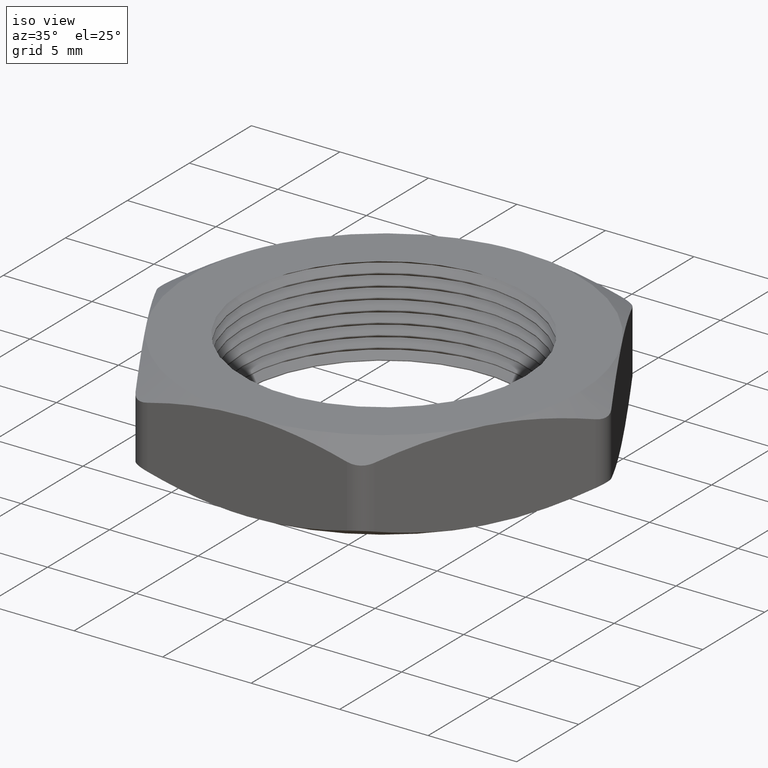
[diagram: clean part render]
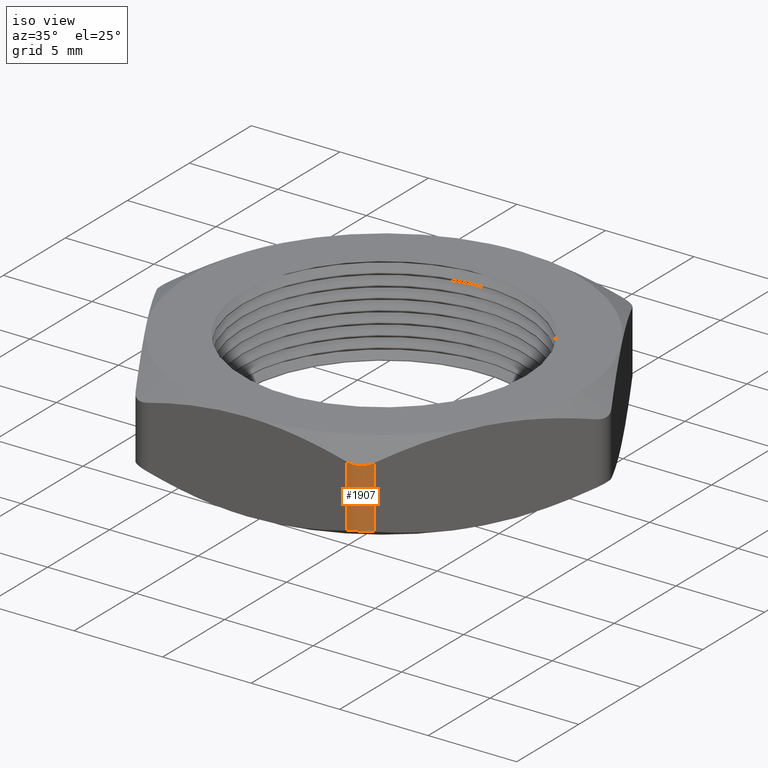
[diagram: same view with one face highlighted and labeled with its STEP entity id]
A machine part, iso view. The second image highlights one B-rep face of the part: STEP entity #1907.
In plain terms, the highlighted cylindrical surface (edge-blend (fillet) strip) has radius 1.27 mm, axis along (0, 0, -1).
Its self-contained STEP definition (entity closure, byte-faithful):
#151 = CARTESIAN_POINT ( 'NONE',  ( 0.2222798536380058400, -0.4349999999999998900, 0.1691111204119871100 ) ) ;
#152 = CARTESIAN_POINT ( 'NONE',  ( 0.2222798536380058700, -0.4349999999999998900, 0.03088887958801292400 ) ) ;
#261 = VECTOR ( 'NONE', #312, 39.37007874015748100 ) ;
#262 = CARTESIAN_POINT ( 'NONE',  ( 0.2222798536380058400, -0.4349999999999998900, 0.2000000000000000100 ) ) ;
#263 = LINE ( 'NONE', #262, #261 ) ;
#312 = DIRECTION ( 'NONE',  ( 0.0000000000000000000, 0.0000000000000000000, 1.000000000000000000 ) ) ;
#575 = CARTESIAN_POINT ( 'NONE',  ( 0.2222798536380058700, -0.4349999999999998900, 0.03088887958801292400 ) ) ;
#576 = CARTESIAN_POINT ( 'NONE',  ( 0.2265847453933643500, -0.4350000000000000500, 0.03201981071306514400 ) ) ;
#577 = CARTESIAN_POINT ( 'NONE',  ( 0.2309501607717563100, -0.4344345798341471800, 0.03290278782089103800 ) ) ;
#578 = CARTESIAN_POINT ( 'NONE',  ( 0.2393632267801773200, -0.4321922691895352900, 0.03408178200495541600 ) ) ;
#579 = CARTESIAN_POINT ( 'NONE',  ( 0.2435107721110095200, -0.4304817054886954100, 0.03438877041274994400 ) ) ;
#580 = CARTESIAN_POINT ( 'NONE',  ( 0.2511235597171597200, -0.4260777074942981900, 0.03438483636758259100 ) ) ;
#581 = CARTESIAN_POINT ( 'NONE',  ( 0.2546428228077295400, -0.4233644132453167600, 0.03407901691707528700 ) ) ;
#582 = CARTESIAN_POINT ( 'NONE',  ( 0.2608209857074537700, -0.4171523112068682400, 0.03288638332351911900 ) ) ;
#583 = CARTESIAN_POINT ( 'NONE',  ( 0.2634293512249394900, -0.4137269794734977400, 0.03201945696273095900 ) ) ;
#584 = CARTESIAN_POINT ( 'NONE',  ( 0.2655811238272408100, -0.4099999999999773300, 0.03088887958800596100 ) ) ;
#589 = B_SPLINE_CURVE_WITH_KNOTS ( 'NONE', 3,
 ( #584, #583, #582, #581, #580, #579, #578, #577, #576, #575 ),
 .UNSPECIFIED., .F., .F.,
 ( 4, 2, 2, 2, 4 ),
 ( 1.017737293320707600E-016, 0.0003345381006703017400, 0.0006690762013405017800, 0.001003614302010701700, 0.001338152402680901600 ),
 .UNSPECIFIED. ) ;
#694 = CARTESIAN_POINT ( 'NONE',  ( 0.2655811238272358100, -0.4099999999999859900, 0.1691111204119916100 ) ) ;
#695 = CARTESIAN_POINT ( 'NONE',  ( 0.2634286779495624300, -0.4137281456206626800, 0.1679801892869403300 ) ) ;
#696 = CARTESIAN_POINT ( 'NONE',  ( 0.2607563020329248800, -0.4172259961534995300, 0.1670972121791126100 ) ) ;
#697 = CARTESIAN_POINT ( 'NONE',  ( 0.2546078710473096400, -0.4233907697182015000, 0.1659182179950468300 ) ) ;
#698 = CARTESIAN_POINT ( 'NONE',  ( 0.2510527067621778900, -0.4261273674876298600, 0.1656112295872513300 ) ) ;
#699 = CARTESIAN_POINT ( 'NONE',  ( 0.2434323388177441800, -0.4305182359509754400, 0.1656151636324161600 ) ) ;
#700 = CARTESIAN_POINT ( 'NONE',  ( 0.2393229255249025300, -0.4322093600655206900, 0.1659209830829218000 ) ) ;
#701 = CARTESIAN_POINT ( 'NONE',  ( 0.2308540058988453600, -0.4344537550661814500, 0.1671136166764750400 ) ) ;
#702 = CARTESIAN_POINT ( 'NONE',  ( 0.2265833988425870700, -0.4349999999999999400, 0.1679805430371038300 ) ) ;
#703 = CARTESIAN_POINT ( 'NONE',  ( 0.2222798536380058400, -0.4349999999999998900, 0.1691111204119871100 ) ) ;
#708 = B_SPLINE_CURVE_WITH_KNOTS ( 'NONE', 3,
 ( #703, #702, #701, #700, #699, #698, #697, #696, #695, #694 ),
 .UNSPECIFIED., .F., .F.,
 ( 4, 2, 2, 2, 4 ),
 ( 8.673617379884035500E-019, 0.0003345381006703067300, 0.0006690762013406125900, 0.001003614302010918300, 0.001338152402681224300 ),
 .UNSPECIFIED. ) ;
#923 = DIRECTION ( 'NONE',  ( -1.000000000000000000, 0.0000000000000000000, 0.0000000000000000000 ) ) ;
#924 = DIRECTION ( 'NONE',  ( 0.0000000000000000000, 0.0000000000000000000, -1.000000000000000000 ) ) ;
#925 = CARTESIAN_POINT ( 'NONE',  ( 0.2222798536380058700, -0.3849999999999998400, 0.2000000000000000100 ) ) ;
#926 = AXIS2_PLACEMENT_3D ( 'NONE', #925, #924, #923 ) ;
#928 = CYLINDRICAL_SURFACE ( 'NONE', #926, 0.05000000000000001000 ) ;
#929 = FACE_OUTER_BOUND ( 'NONE', #1902, .T. ) ;
#1251 = CARTESIAN_POINT ( 'NONE',  ( 0.2655811238272408100, -0.4099999999999773300, 0.03088887958800596100 ) ) ;
#1252 = DIRECTION ( 'NONE',  ( 0.0000000000000000000, 0.0000000000000000000, -1.000000000000000000 ) ) ;
#1253 = VECTOR ( 'NONE', #1252, 39.37007874015748100 ) ;
#1254 = CARTESIAN_POINT ( 'NONE',  ( 0.2655811238272278200, -0.4099999999999998600, 0.2000000000000000100 ) ) ;
#1263 = CARTESIAN_POINT ( 'NONE',  ( 0.2655811238272358100, -0.4099999999999859900, 0.1691111204119916100 ) ) ;
#1265 = LINE ( 'NONE', #1254, #1253 ) ;
#1544 = VERTEX_POINT ( 'NONE', #152 ) ;
#1545 = VERTEX_POINT ( 'NONE', #151 ) ;
#1600 = EDGE_CURVE ( 'NONE', #1544, #1545, #263, .T. ) ;
#1741 = EDGE_CURVE ( 'NONE', #2100, #1544, #589, .T. ) ;
#1803 = EDGE_CURVE ( 'NONE', #1545, #2097, #708, .T. ) ;
#1902 = EDGE_LOOP ( 'NONE', ( #1903, #1906, #1904, #1912 ) ) ;
#1903 = ORIENTED_EDGE ( 'NONE', *, *, #1803, .F. ) ;
#1904 = ORIENTED_EDGE ( 'NONE', *, *, #1741, .F. ) ;
#1906 = ORIENTED_EDGE ( 'NONE', *, *, #1600, .F. ) ;
#1907 = ADVANCED_FACE ( 'NONE', ( #929 ), #928, .T. ) ;
#1912 = ORIENTED_EDGE ( 'NONE', *, *, #2099, .F. ) ;
#2097 = VERTEX_POINT ( 'NONE', #1263 ) ;
#2099 = EDGE_CURVE ( 'NONE', #2097, #2100, #1265, .T. ) ;
#2100 = VERTEX_POINT ( 'NONE', #1251 ) ;